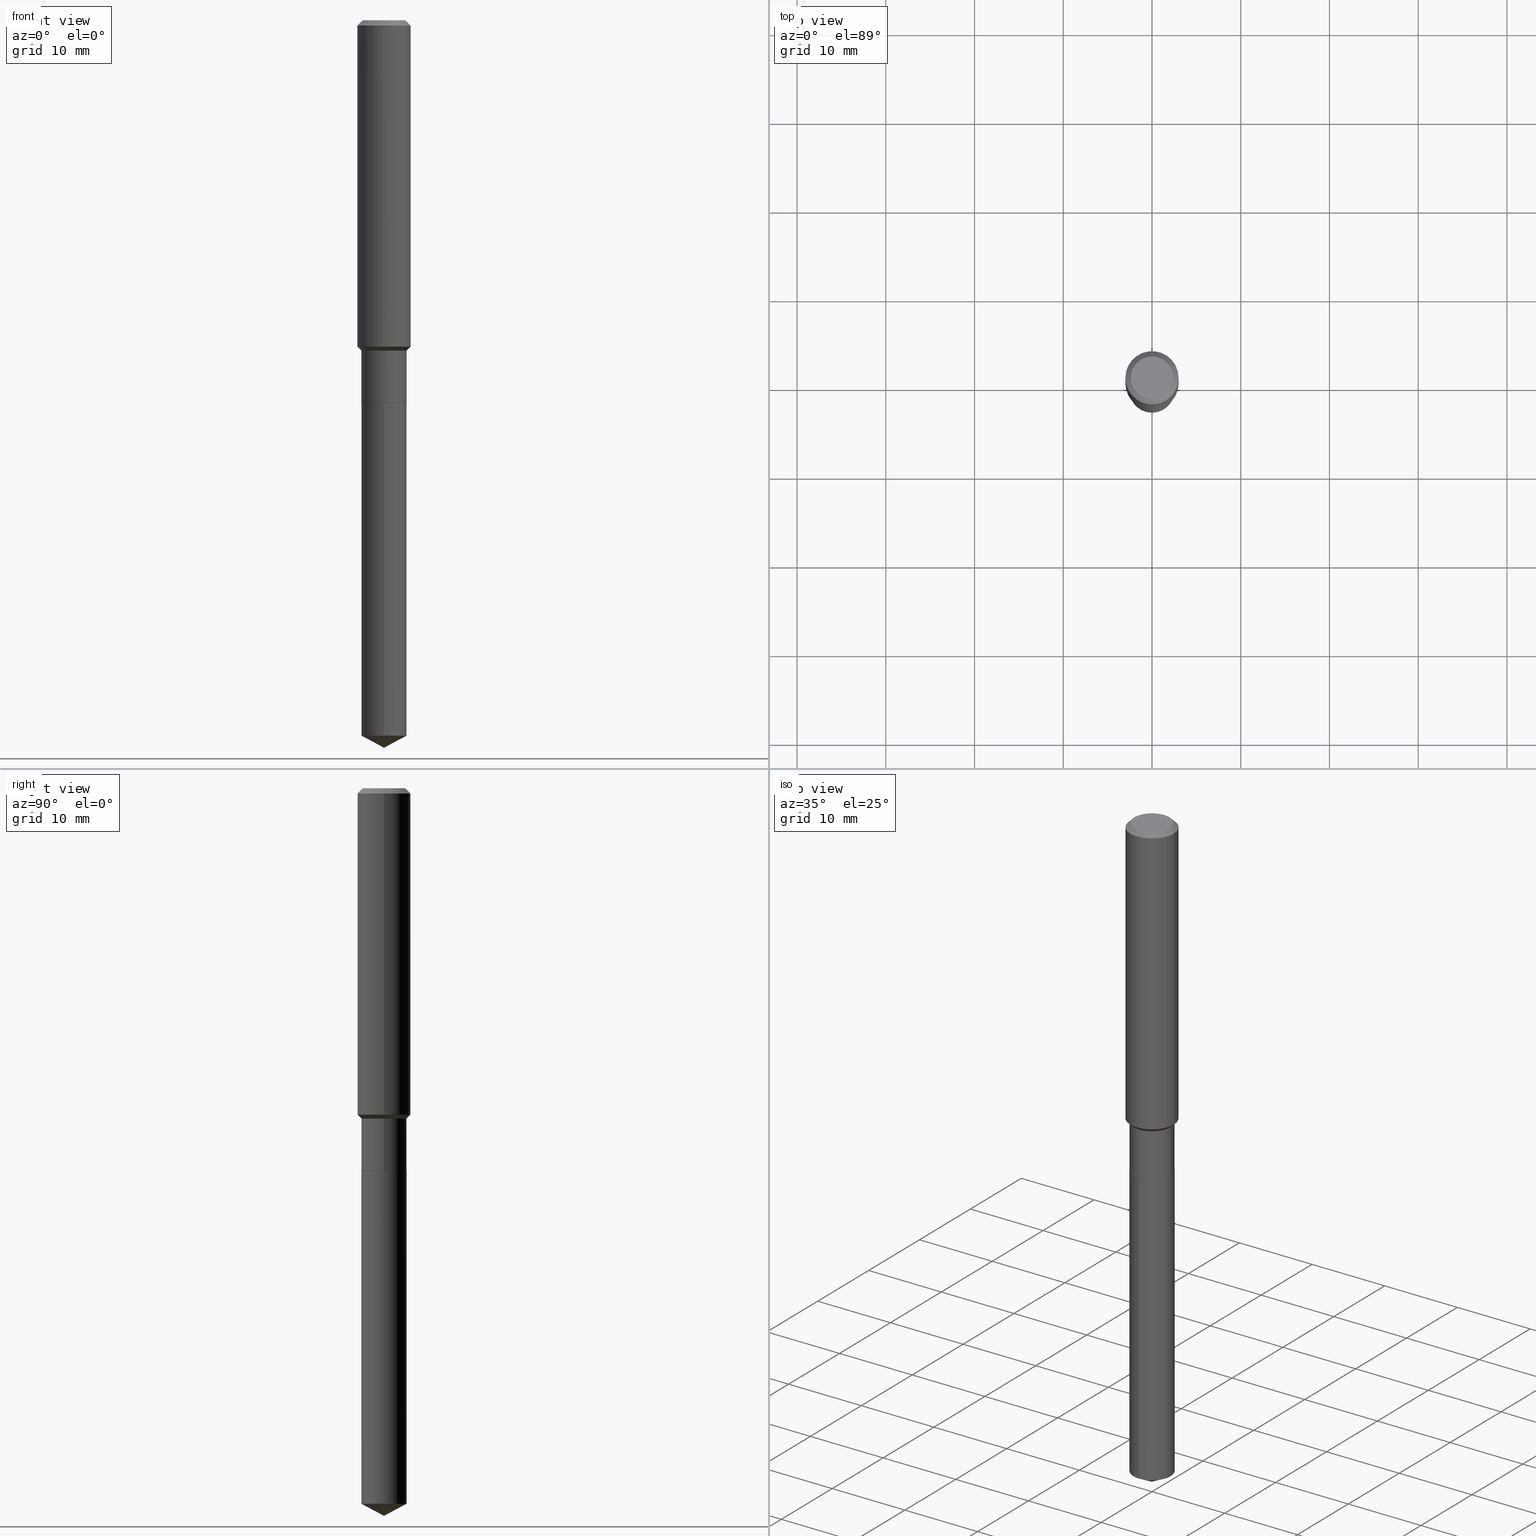
[diagram: canonical four-view strip — front | top / right | iso, engineering-drawing reading convention]
A machine part, canonical four-view strip (front | top / right | iso — engineering-drawing reading convention). The complete STEP part file that produces these views, byte-faithful:
ISO-10303-21;
HEADER;
FILE_DESCRIPTION (( 'STEP AP203' ),
    '1' );
FILE_NAME ('65181.STEP',
    '2024-04-24T21:02:26',
    ( '' ),
    ( '' ),
    'SwSTEP 2.0',
    'SolidWorks 2023',
    '' );
FILE_SCHEMA (( 'CONFIG_CONTROL_DESIGN' ));
ENDSEC;

DATA;
#1 = ORIENTED_EDGE ( 'NONE', *, *, #59, .T. ) ;
#2 = ORIENTED_EDGE ( 'NONE', *, *, #353, .F. ) ;
#3 = EDGE_CURVE ( 'NONE', #124, #419, #349, .T. ) ;
#4 = ORIENTED_EDGE ( 'NONE', *, *, #475, .T. ) ;
#5 = DIRECTION ( 'NONE',  ( 0.7071067811865474617, -2.468850131082256666E-15, 0.7071067811865474617 ) ) ;
#6 = EDGE_LOOP ( 'NONE', ( #276, #163, #28, #160 ) ) ;
#7 = VECTOR ( 'NONE', #195, 39.37007874015748143 ) ;
#8 = AXIS2_PLACEMENT_3D ( 'NONE', #262, #409, #144 ) ;
#9 = LOCAL_TIME ( 17, 2, 26.00000000000000000, #319 ) ;
#10 = DIRECTION ( 'NONE',  ( 1.000000000000000000, -6.982962677686264344E-15, 0.000000000000000000 ) ) ;
#11 = EDGE_LOOP ( 'NONE', ( #227, #336 ) ) ;
#12 = COORDINATED_UNIVERSAL_TIME_OFFSET ( 5, 0, .BEHIND. ) ;
#13 = EDGE_LOOP ( 'NONE', ( #342, #65, #238, #200 ) ) ;
#14 = COORDINATED_UNIVERSAL_TIME_OFFSET ( 5, 0, .BEHIND. ) ;
#15 = CARTESIAN_POINT ( 'NONE',  ( -0.1004000000000000031, -4.806996238141757773E-15, -1.696300000000000363 ) ) ;
#16 = PERSON_AND_ORGANIZATION ( #134, #314 ) ;
#17 = CC_DESIGN_DATE_AND_TIME_ASSIGNMENT ( #20, #471, ( #118 ) ) ;
#18 = DIRECTION ( 'NONE',  ( 1.000000000000000000, -6.982962677686266711E-15, 4.876176775795935232E-29 ) ) ;
#19 = DIRECTION ( 'NONE',  ( -2.445468806185136597E-29, 3.491481338843145583E-15, 1.000000000000000000 ) ) ;
#20 = DATE_AND_TIME ( #244, #114 ) ;
#21 = DIRECTION ( 'NONE',  ( -1.000000000000000000, 6.982962677686266711E-15, 0.000000000000000000 ) ) ;
#22 = PRODUCT_RELATED_PRODUCT_CATEGORY ( 'detail', '', ( #209 ) ) ;
#23 = CARTESIAN_POINT ( 'NONE',  ( 0.09990000000000000269, -6.621943507249908450E-15, -1.696800000000000308 ) ) ;
#24 = APPROVAL ( #355, 'UNSPECIFIED' ) ;
#25 = DIRECTION ( 'NONE',  ( -2.445468806185136597E-29, 3.491481338843145583E-15, 1.000000000000000000 ) ) ;
#26 = VERTEX_POINT ( 'NONE', #88 ) ;
#27 = DIRECTION ( 'NONE',  ( -2.445468806185136877E-29, 3.491481338843145188E-15, 1.000000000000000000 ) ) ;
#28 = ORIENTED_EDGE ( 'NONE', *, *, #152, .T. ) ;
#29 = VECTOR ( 'NONE', #401, 39.37007874015748143 ) ;
#30 = LINE ( 'NONE', #191, #445 ) ;
#31 = AXIS2_PLACEMENT_3D ( 'NONE', #105, #298, #260 ) ;
#32 = LOCAL_TIME ( 17, 2, 26.00000000000000000, #177 ) ;
#33 = DIRECTION ( 'NONE',  ( -2.445468806185136877E-29, 3.491481338843145188E-15, 1.000000000000000000 ) ) ;
#34 = EDGE_CURVE ( 'NONE', #43, #299, #223, .T. ) ;
#35 = CARTESIAN_POINT ( 'NONE',  ( 7.894713085063821487E-29, -1.127154175714341536E-14, -3.228299999999999947 ) ) ;
#36 = VERTEX_POINT ( 'NONE', #80 ) ;
#37 = CLOSED_SHELL ( 'NONE', ( #296, #241, #215, #89, #344, #116, #447, #377, #323, #462, #400, #367 ) ) ;
#38 = AXIS2_PLACEMENT_3D ( 'NONE', #97, #295, #216 ) ;
#39 = CARTESIAN_POINT ( 'NONE',  ( -0.1180999999999999966, 7.422191030112725094E-16, -0.02362000000000014088 ) ) ;
#40 = EDGE_CURVE ( 'NONE', #419, #36, #380, .T. ) ;
#41 = CARTESIAN_POINT ( 'NONE',  ( -0.1003999999999999754, -4.404777587907026784E-15, -1.465899999999999981 ) ) ;
#42 = CARTESIAN_POINT ( 'NONE',  ( -7.010894528396234726E-16, -0.1004000000000110776, -3.174916373061186459 ) ) ;
#43 = VERTEX_POINT ( 'NONE', #85 ) ;
#44 = DIRECTION ( 'NONE',  ( 1.000000000000000000, -6.982962677686267499E-15, 4.875432709231658792E-29 ) ) ;
#45 = VECTOR ( 'NONE', #247, 39.37007874015748854 ) ;
#46 = AXIS2_PLACEMENT_3D ( 'NONE', #313, #159, #237 ) ;
#47 = SECURITY_CLASSIFICATION ( '', '', #322 ) ;
#48 = DIRECTION ( 'NONE',  ( -0.7071067811866199593, 7.493145998870616062E-15, 0.7071067811864750752 ) ) ;
#49 = ORIENTED_EDGE ( 'NONE', *, *, #393, .F. ) ;
#50 = DIMENSIONAL_EXPONENTS ( 1.000000000000000000, 0.000000000000000000, 0.000000000000000000, 0.000000000000000000, 0.000000000000000000, 0.000000000000000000, 0.000000000000000000 ) ;
#51 = PERSON_AND_ORGANIZATION_ROLE ( 'design_owner' ) ;
#52 = CARTESIAN_POINT ( 'NONE',  ( 7.894605359270009974E-29, -1.127169468560939573E-14, -3.228299999999999947 ) ) ;
#53 = APPROVAL ( #210, 'UNSPECIFIED' ) ;
#54 = DATE_AND_TIME ( #207, #32 ) ;
#55 = DIRECTION ( 'NONE',  ( -6.982962677686266711E-15, -1.000000000000000000, 2.720964137115799877E-15 ) ) ;
#56 = AXIS2_PLACEMENT_3D ( 'NONE', #466, #212, #172 ) ;
#57 = AXIS2_PLACEMENT_3D ( 'NONE', #483, #181, #108 ) ;
#58 = CIRCLE ( 'NONE', #275, 0.1180999999999999966 ) ;
#59 = EDGE_CURVE ( 'NONE', #43, #127, #167, .T. ) ;
#60 = CARTESIAN_POINT ( 'NONE',  ( 7.894605359270009974E-29, -1.127169468560939573E-14, -3.228299999999999947 ) ) ;
#61 = CARTESIAN_POINT ( 'NONE',  ( -7.010894528396596616E-16, -0.1004000000000059289, -1.696800000000000086 ) ) ;
#62 = CARTESIAN_POINT ( 'NONE',  ( 5.776197320209327532E-31, -8.246878922347559293E-17, -0.02362000000000014088 ) ) ;
#63 = AXIS2_PLACEMENT_3D ( 'NONE', #62, #363, #21 ) ;
#64 = FACE_OUTER_BOUND ( 'NONE', #13, .T. ) ;
#65 = ORIENTED_EDGE ( 'NONE', *, *, #372, .T. ) ;
#66 = LINE ( 'NONE', #369, #396 ) ;
#67 = ORIENTED_EDGE ( 'NONE', *, *, #82, .T. ) ;
#68 = CC_DESIGN_PERSON_AND_ORGANIZATION_ASSIGNMENT ( #465, #132, ( #141 ) ) ;
#69 = CARTESIAN_POINT ( 'NONE',  ( 4.149471470334940863E-29, -5.924345535749050380E-15, -1.696800000000000308 ) ) ;
#70 = EDGE_LOOP ( 'NONE', ( #421, #423, #4, #406 ) ) ;
#71 = AXIS2_PLACEMENT_3D ( 'NONE', #234, #197, #55 ) ;
#72 = CIRCLE ( 'NONE', #217, 0.1003999999999999754 ) ;
#73 = DIRECTION ( 'NONE',  ( -2.445437338311188488E-29, 3.491526402629679676E-15, 1.000000000000000000 ) ) ;
#74 = VECTOR ( 'NONE', #33, 39.37007874015748143 ) ;
#75 = LOCAL_TIME ( 17, 2, 26.00000000000000000, #14 ) ;
#76 = EDGE_CURVE ( 'NONE', #121, #106, #477, .T. ) ;
#77 = LINE ( 'NONE', #220, #320 ) ;
#78 = ORIENTED_EDGE ( 'NONE', *, *, #453, .F. ) ;
#79 = DIRECTION ( 'NONE',  ( 2.438088387897960049E-29, -3.491481338843145188E-15, -1.000000000000000000 ) ) ;
#80 = CARTESIAN_POINT ( 'NONE',  ( -0.1181000000000001632, -4.217212303979963532E-15, -1.448199999999999932 ) ) ;
#81 = DESIGN_CONTEXT ( 'detailed design', #104, 'design' ) ;
#82 = EDGE_CURVE ( 'NONE', #259, #385, #180, .T. ) ;
#83 = CC_DESIGN_DATE_AND_TIME_ASSIGNMENT ( #428, #359, ( #47 ) ) ;
#84 = AXIS2_PLACEMENT_3D ( 'NONE', #426, #245, #392 ) ;
#85 = CARTESIAN_POINT ( 'NONE',  ( -0.09447999999999998066, 7.009847083995354710E-16, -1.928573779297727792E-17 ) ) ;
#86 = LINE ( 'NONE', #274, #112 ) ;
#87 = ORIENTED_EDGE ( 'NONE', *, *, #289, .T. ) ;
#88 = CARTESIAN_POINT ( 'NONE',  ( -0.09990000000000000269, -5.211864115550599962E-15, -1.696800000000000308 ) ) ;
#89 = ADVANCED_FACE ( 'NONE', ( #95 ), #350, .T. ) ;
#90 = PLANE ( 'NONE',  #218 ) ;
#91 = ORIENTED_EDGE ( 'NONE', *, *, #372, .F. ) ;
#92 = UNCERTAINTY_MEASURE_WITH_UNIT (LENGTH_MEASURE( 1.000000000000000082E-05 ), #194, 'distance_accuracy_value', 'NONE');
#93 = AXIS2_PLACEMENT_3D ( 'NONE', #479, #366, #266 ) ;
#94 = EDGE_CURVE ( 'NONE', #124, #278, #272, .T. ) ;
#95 = FACE_OUTER_BOUND ( 'NONE', #190, .T. ) ;
#96 = DATE_AND_TIME ( #281, #9 ) ;
#97 = CARTESIAN_POINT ( 'NONE',  ( 4.149471470334940863E-29, -5.924345535749050380E-15, -1.696800000000000308 ) ) ;
#98 = PERSON_AND_ORGANIZATION ( #134, #314 ) ;
#99 = DIRECTION ( 'NONE',  ( -2.445437338311188488E-29, 3.491526402629679676E-15, 1.000000000000000000 ) ) ;
#100 = CONICAL_SURFACE ( 'NONE', #149, 0.09990000000000000269, 0.7853981633975507526 ) ;
#101 = CARTESIAN_POINT ( 'NONE',  ( 0.1003999999999999754, -5.819251947449867977E-15, -1.465899999999999981 ) ) ;
#102 = LINE ( 'NONE', #61, #257 ) ;
#103 = FACE_OUTER_BOUND ( 'NONE', #302, .T. ) ;
#104 = APPLICATION_CONTEXT ( 'configuration controlled 3d designs of mechanical parts and assemblies' ) ;
#105 = CARTESIAN_POINT ( 'NONE',  ( 4.149471470334940863E-29, -5.924345535749050380E-15, -1.696800000000000308 ) ) ;
#106 = VERTEX_POINT ( 'NONE', #254 ) ;
#107 = CC_DESIGN_PERSON_AND_ORGANIZATION_ASSIGNMENT ( #16, #317, ( #118 ) ) ;
#108 = DIRECTION ( 'NONE',  ( 1.000000000000000000, -6.982962677686267499E-15, 0.000000000000000000 ) ) ;
#109 = ORIENTED_EDGE ( 'NONE', *, *, #371, .F. ) ;
#110 = DIRECTION ( 'NONE',  ( -6.982962677686266711E-15, -1.000000000000000000, 2.720964137115799877E-15 ) ) ;
#111 = ORIENTED_EDGE ( 'NONE', *, *, #3, .F. ) ;
#112 = VECTOR ( 'NONE', #5, 39.37007874015748854 ) ;
#113 = DIRECTION ( 'NONE',  ( 1.000000000000000000, -6.982962677686267499E-15, 0.000000000000000000 ) ) ;
#114 = LOCAL_TIME ( 17, 2, 26.00000000000000000, #12 ) ;
#115 = ORIENTED_EDGE ( 'NONE', *, *, #152, .F. ) ;
#116 = ADVANCED_FACE ( 'NONE', ( #285 ), #133, .T. ) ;
#117 = DIRECTION ( 'NONE',  ( -2.445468806185136597E-29, 3.491481338843145583E-15, 1.000000000000000000 ) ) ;
#118 = PRODUCT_DEFINITION ( 'UNKNOWN', '', #141, #81 ) ;
#119 = ORIENTED_EDGE ( 'NONE', *, *, #82, .F. ) ;
#120 = CARTESIAN_POINT ( 'NONE',  ( 3.541527925117314653E-29, -5.056363274912643307E-15, -1.448199999999999932 ) ) ;
#121 = VERTEX_POINT ( 'NONE', #356 ) ;
#122 = DIRECTION ( 'NONE',  ( -2.445468806185136597E-29, 3.491481338843145583E-15, 1.000000000000000000 ) ) ;
#123 = CIRCLE ( 'NONE', #8, 0.1181000000000001632 ) ;
#124 = VERTEX_POINT ( 'NONE', #15 ) ;
#125 = ORIENTED_EDGE ( 'NONE', *, *, #206, .T. ) ;
#126 = PLANE ( 'NONE',  #264 ) ;
#127 = VERTEX_POINT ( 'NONE', #330 ) ;
#128 = ADVANCED_FACE ( 'NONE', ( #435 ), #410, .T. ) ;
#129 = APPROVAL_DATE_TIME ( #54, #53 ) ;
#130 = FACE_OUTER_BOUND ( 'NONE', #6, .T. ) ;
#131 = AXIS2_PLACEMENT_3D ( 'NONE', #328, #473, #143 ) ;
#132 = PERSON_AND_ORGANIZATION_ROLE ( 'design_supplier' ) ;
#133 = CYLINDRICAL_SURFACE ( 'NONE', #185, 0.1003999999999999893 ) ;
#134 = PERSON ( 'UNSPECIFIED', 'UNSPECIFIED', 'UNSPECIFIED', ('UNSPECIFIED'), ('UNSPECIFIED'), ('UNSPECIFIED') ) ;
#135 = APPROVAL_ROLE ( '' ) ;
#136 = DIRECTION ( 'NONE',  ( -2.445468806185136597E-29, 3.491481338843145583E-15, 1.000000000000000000 ) ) ;
#137 = EDGE_CURVE ( 'NONE', #299, #311, #361, .T. ) ;
#138 = PERSON_AND_ORGANIZATION ( #134, #314 ) ;
#139 = CARTESIAN_POINT ( 'NONE',  ( 0.000000000000000000, 0.000000000000000000, 0.000000000000000000 ) ) ;
#140 = AXIS2_PLACEMENT_3D ( 'NONE', #308, #451, #422 ) ;
#141 = PRODUCT_DEFINITION_FORMATION_WITH_SPECIFIED_SOURCE ( 'ANY', '', #209, .NOT_KNOWN. ) ;
#142 = PERSON_AND_ORGANIZATION ( #134, #314 ) ;
#143 = DIRECTION ( 'NONE',  ( 1.000000000000000000, -6.982962677686266711E-15, 0.000000000000000000 ) ) ;
#144 = DIRECTION ( 'NONE',  ( 1.000000000000000000, -6.982962677686263555E-15, 0.000000000000000000 ) ) ;
#145 = DIRECTION ( 'NONE',  ( -2.445437338311188488E-29, 3.491526402629679676E-15, 1.000000000000000000 ) ) ;
#146 = EDGE_CURVE ( 'NONE', #482, #106, #175, .T. ) ;
#147 = ORIENTED_EDGE ( 'NONE', *, *, #309, .T. ) ;
#148 = VECTOR ( 'NONE', #204, 39.37007874015748854 ) ;
#149 = AXIS2_PLACEMENT_3D ( 'NONE', #334, #331, #113 ) ;
#150 = FACE_OUTER_BOUND ( 'NONE', #154, .T. ) ;
#151 = ORIENTED_EDGE ( 'NONE', *, *, #453, .T. ) ;
#152 = EDGE_CURVE ( 'NONE', #385, #121, #102, .T. ) ;
#153 = CARTESIAN_POINT ( 'NONE',  ( 3.584812722986791865E-29, -5.118162494610166900E-15, -1.465899999999999981 ) ) ;
#154 = EDGE_LOOP ( 'NONE', ( #125, #347, #109, #417 ) ) ;
#155 = CARTESIAN_POINT ( 'NONE',  ( 3.584812722986791865E-29, -5.118162494610166900E-15, -1.465899999999999981 ) ) ;
#156 = VECTOR ( 'NONE', #301, 39.37007874015748143 ) ;
#157 = PLANE ( 'NONE',  #46 ) ;
#158 = ORIENTED_EDGE ( 'NONE', *, *, #76, .F. ) ;
#159 = DIRECTION ( 'NONE',  ( 2.445437338311187928E-29, -3.491526402629679676E-15, -1.000000000000000000 ) ) ;
#160 = ORIENTED_EDGE ( 'NONE', *, *, #309, .F. ) ;
#161 = DIRECTION ( 'NONE',  ( -1.000000000000000000, 6.982962677686265922E-15, -4.876176775795935793E-29 ) ) ;
#162 = MANIFOLD_SOLID_BREP ( 'Body-Move/Copy2[1]', #454 ) ;
#163 = ORIENTED_EDGE ( 'NONE', *, *, #439, .T. ) ;
#164 = CARTESIAN_POINT ( 'NONE',  ( 4.149471470334940863E-29, -5.924345535749050380E-15, -1.696800000000000308 ) ) ;
#165 = CIRCLE ( 'NONE', #433, 0.09990000000000000269 ) ;
#166 = EDGE_LOOP ( 'NONE', ( #487, #443, #158, #115 ) ) ;
#167 = LINE ( 'NONE', #39, #7 ) ;
#168 = DATE_AND_TIME ( #174, #294 ) ;
#169 = ORIENTED_EDGE ( 'NONE', *, *, #94, .T. ) ;
#170 = CALENDAR_DATE ( 2024, 24, 4 ) ;
#171 = CC_DESIGN_PERSON_AND_ORGANIZATION_ASSIGNMENT ( #142, #284, ( #47 ) ) ;
#172 = DIRECTION ( 'NONE',  ( 1.000000000000000000, -6.982962677686264344E-15, 0.000000000000000000 ) ) ;
#173 = CONICAL_SURFACE ( 'NONE', #481, 0.1003999999999999754, 0.7853981633974482790 ) ;
#174 = CALENDAR_DATE ( 2024, 24, 4 ) ;
#175 = LINE ( 'NONE', #178, #252 ) ;
#176 = CARTESIAN_POINT ( 'NONE',  ( 0.1180999999999999966, -8.926936027602933910E-16, -0.02362000000000014088 ) ) ;
#177 = COORDINATED_UNIVERSAL_TIME_OFFSET ( 5, 0, .BEHIND. ) ;
#178 = CARTESIAN_POINT ( 'NONE',  ( 7.133849067031820241E-16, 0.1003999999999940773, -1.696800000000000530 ) ) ;
#179 = CIRCLE ( 'NONE', #282, 0.1004000000000000031 ) ;
#180 = LINE ( 'NONE', #60, #45 ) ;
#181 = DIRECTION ( 'NONE',  ( -2.445468806185136597E-29, 3.491481338843145583E-15, 1.000000000000000000 ) ) ;
#182 = ORIENTED_EDGE ( 'NONE', *, *, #371, .T. ) ;
#183 = CYLINDRICAL_SURFACE ( 'NONE', #31, 0.1004000000000000031 ) ;
#184 = ORIENTED_EDGE ( 'NONE', *, *, #362, .F. ) ;
#185 = AXIS2_PLACEMENT_3D ( 'NONE', #395, #136, #18 ) ;
#186 = VECTOR ( 'NONE', #48, 39.37007874015748143 ) ;
#187 = DIRECTION ( 'NONE',  ( -2.445468806185136597E-29, 3.491481338843145583E-15, 1.000000000000000000 ) ) ;
#188 = ORIENTED_EDGE ( 'NONE', *, *, #439, .F. ) ;
#189 = CARTESIAN_POINT ( 'NONE',  ( 4.149471470334940863E-29, -5.924345535749050380E-15, -1.696800000000000308 ) ) ;
#190 = EDGE_LOOP ( 'NONE', ( #182, #192, #78, #49 ) ) ;
#191 = CARTESIAN_POINT ( 'NONE',  ( 0.1003999999999999893, -7.010894528397010768E-16, 4.895681482899118454E-30 ) ) ;
#192 = ORIENTED_EDGE ( 'NONE', *, *, #40, .T. ) ;
#193 = CONICAL_SURFACE ( 'NONE', #63, 0.1180999999999999966, 0.7853981633974460586 ) ;
#194 =( CONVERSION_BASED_UNIT ( 'INCH', #382 ) LENGTH_UNIT ( ) NAMED_UNIT ( #50 ) );
#195 = DIRECTION ( 'NONE',  ( -0.7071067811865459074, 2.468850131082240100E-15, -0.7071067811865491270 ) ) ;
#196 = DIRECTION ( 'NONE',  ( -2.438088387897960049E-29, 3.491481338843145188E-15, 1.000000000000000000 ) ) ;
#197 = DIRECTION ( 'NONE',  ( -2.445437338311188488E-29, 3.491526402629679676E-15, 1.000000000000000000 ) ) ;
#198 = ADVANCED_BREP_SHAPE_REPRESENTATION ( '65181', ( #162, #478, #472 ), #203 ) ;
#199 = DIRECTION ( 'NONE',  ( -2.445468806185136597E-29, 3.491481338843145583E-15, 1.000000000000000000 ) ) ;
#200 = ORIENTED_EDGE ( 'NONE', *, *, #246, .F. ) ;
#201 = AXIS2_PLACEMENT_3D ( 'NONE', #211, #429, #398 ) ;
#202 = CARTESIAN_POINT ( 'NONE',  ( 3.584812722986791865E-29, -5.118162494610166900E-15, -1.465899999999999981 ) ) ;
#203 =( GEOMETRIC_REPRESENTATION_CONTEXT ( 3 ) GLOBAL_UNCERTAINTY_ASSIGNED_CONTEXT ( ( #92 ) ) GLOBAL_UNIT_ASSIGNED_CONTEXT ( ( #194, #310, #416 ) ) REPRESENTATION_CONTEXT ( 'NONE', 'WORKASPACE' ) );
#204 = DIRECTION ( 'NONE',  ( -0.7071067811865474617, 7.493145998870352582E-15, 0.7071067811865474617 ) ) ;
#205 = ORIENTED_EDGE ( 'NONE', *, *, #94, .F. ) ;
#206 = EDGE_CURVE ( 'NONE', #278, #124, #179, .T. ) ;
#207 = CALENDAR_DATE ( 2024, 24, 4 ) ;
#208 = CARTESIAN_POINT ( 'NONE',  ( 0.1181000000000001632, -5.881051167147392359E-15, -1.448199999999999932 ) ) ;
#209 = PRODUCT ( '65181', '65181', '', ( #489 ) ) ;
#210 = APPROVAL_STATUS ( 'not_yet_approved' ) ;
#211 = CARTESIAN_POINT ( 'NONE',  ( -8.838240180947410923E-28, 1.261900511734928916E-13, 36.14177874015747705 ) ) ;
#212 = DIRECTION ( 'NONE',  ( -2.445468806185136597E-29, 3.491481338843145583E-15, 1.000000000000000000 ) ) ;
#213 = ADVANCED_FACE ( 'NONE', ( #326 ), #381, .T. ) ;
#214 = FACE_OUTER_BOUND ( 'NONE', #70, .T. ) ;
#215 = ADVANCED_FACE ( 'NONE', ( #251 ), #364, .T. ) ;
#216 = DIRECTION ( 'NONE',  ( 1.000000000000000000, -6.982962677686267499E-15, 0.000000000000000000 ) ) ;
#217 = AXIS2_PLACEMENT_3D ( 'NONE', #155, #122, #420 ) ;
#218 = AXIS2_PLACEMENT_3D ( 'NONE', #228, #79, #161 ) ;
#219 = CARTESIAN_POINT ( 'NONE',  ( 0.1004000000000000031, -6.623689247919329954E-15, -1.696300000000000363 ) ) ;
#220 = CARTESIAN_POINT ( 'NONE',  ( 0.09990000000000000269, -6.621943507249908450E-15, -1.696800000000000308 ) ) ;
#221 = VERTEX_POINT ( 'NONE', #101 ) ;
#222 = FACE_OUTER_BOUND ( 'NONE', #376, .T. ) ;
#223 = CIRCLE ( 'NONE', #358, 0.09447999999999998066 ) ;
#224 = DIRECTION ( 'NONE',  ( 2.445468806185136597E-29, -3.491481338843145583E-15, -1.000000000000000000 ) ) ;
#225 = ORIENTED_EDGE ( 'NONE', *, *, #76, .T. ) ;
#226 = DIRECTION ( 'NONE',  ( -6.982962677686266711E-15, -1.000000000000000000, 5.441928274231599754E-15 ) ) ;
#227 = ORIENTED_EDGE ( 'NONE', *, *, #34, .T. ) ;
#228 = CARTESIAN_POINT ( 'NONE',  ( 2.358133508849003952E-46, -3.366789680499277518E-32, -9.642868896486260050E-18 ) ) ;
#229 = EDGE_LOOP ( 'NONE', ( #111, #169, #404, #354 ) ) ;
#230 = VECTOR ( 'NONE', #268, 39.37007874015748143 ) ;
#231 = AXIS2_PLACEMENT_3D ( 'NONE', #444, #224, #373 ) ;
#232 = CARTESIAN_POINT ( 'NONE',  ( -0.1003999999999999754, -4.806996238141757773E-15, -1.465899999999999981 ) ) ;
#233 = APPROVAL_PERSON_ORGANIZATION ( #98, #24, #135 ) ;
#234 = CARTESIAN_POINT ( 'NONE',  ( 4.149471470334940863E-29, -5.924345535749050380E-15, -1.696800000000000308 ) ) ;
#235 = FACE_OUTER_BOUND ( 'NONE', #463, .T. ) ;
#236 = EDGE_LOOP ( 'NONE', ( #184, #460 ) ) ;
#237 = DIRECTION ( 'NONE',  ( 6.982962677686265922E-15, 1.000000000000000000, -3.491526402629679676E-15 ) ) ;
#238 = ORIENTED_EDGE ( 'NONE', *, *, #378, .T. ) ;
#239 = DIRECTION ( 'NONE',  ( 0.000000000000000000, 0.000000000000000000, 1.000000000000000000 ) ) ;
#240 = CIRCLE ( 'NONE', #131, 0.1180999999999999966 ) ;
#241 = ADVANCED_FACE ( 'NONE', ( #214 ), #193, .T. ) ;
#242 = APPROVAL_PERSON_ORGANIZATION ( #425, #53, #250 ) ;
#243 = VERTEX_POINT ( 'NONE', #23 ) ;
#244 = CALENDAR_DATE ( 2024, 24, 4 ) ;
#245 = DIRECTION ( 'NONE',  ( -2.445437338311188488E-29, 3.491526402629679676E-15, 1.000000000000000000 ) ) ;
#246 = EDGE_CURVE ( 'NONE', #127, #311, #240, .T. ) ;
#247 = DIRECTION ( 'NONE',  ( -6.165590087286817097E-15, -0.8829475928589237688, 0.4694715627858968565 ) ) ;
#248 = PRODUCT_DEFINITION_SHAPE ( 'NONE', 'NONE',  #118 ) ;
#249 = EDGE_CURVE ( 'NONE', #26, #243, #343, .T. ) ;
#250 = APPROVAL_ROLE ( '' ) ;
#251 = FACE_OUTER_BOUND ( 'NONE', #312, .T. ) ;
#252 = VECTOR ( 'NONE', #321, 39.37007874015748143 ) ;
#253 = CARTESIAN_POINT ( 'NONE',  ( 4.148248735931848062E-29, -5.922599795079628877E-15, -1.696300000000000363 ) ) ;
#254 = CARTESIAN_POINT ( 'NONE',  ( 7.133849067032184103E-16, 0.1003999999999940773, -1.696800000000000530 ) ) ;
#255 = CARTESIAN_POINT ( 'NONE',  ( 0.1180999999999999966, -9.071566814582237199E-16, -0.02362000000000014088 ) ) ;
#256 = ADVANCED_FACE ( 'NONE', ( #130 ), #283, .T. ) ;
#257 = VECTOR ( 'NONE', #324, 39.37007874015748143 ) ;
#258 = CARTESIAN_POINT ( 'NONE',  ( 7.764112439387876695E-29, -1.108522787845140694E-14, -3.174916373061187347 ) ) ;
#259 = VERTEX_POINT ( 'NONE', #52 ) ;
#260 = DIRECTION ( 'NONE',  ( -6.982962677686266711E-15, -1.000000000000000000, 2.720964137115799877E-15 ) ) ;
#261 = VERTEX_POINT ( 'NONE', #208 ) ;
#262 = CARTESIAN_POINT ( 'NONE',  ( 3.541527925117314653E-29, -5.056363274912643307E-15, -1.448199999999999932 ) ) ;
#263 = ORIENTED_EDGE ( 'NONE', *, *, #393, .T. ) ;
#264 = AXIS2_PLACEMENT_3D ( 'NONE', #164, #196, #448 ) ;
#265 = CC_DESIGN_APPROVAL ( #53, ( #118 ) ) ;
#266 = DIRECTION ( 'NONE',  ( 1.000000000000000000, -6.982962677686267499E-15, 4.875432709231658792E-29 ) ) ;
#267 = FACE_OUTER_BOUND ( 'NONE', #236, .T. ) ;
#268 = DIRECTION ( 'NONE',  ( -2.445468806185136877E-29, 3.491481338843145188E-15, 1.000000000000000000 ) ) ;
#269 = DIRECTION ( 'NONE',  ( 1.000000000000000000, -6.982962677686266711E-15, 0.000000000000000000 ) ) ;
#270 = ORIENTED_EDGE ( 'NONE', *, *, #246, .T. ) ;
#271 = ADVANCED_FACE ( 'NONE', ( #307 ), #183, .T. ) ;
#272 = CIRCLE ( 'NONE', #335, 0.1004000000000000031 ) ;
#273 = AXIS2_PLACEMENT_3D ( 'NONE', #153, #474, #304 ) ;
#274 = CARTESIAN_POINT ( 'NONE',  ( 0.1003999999999999754, -5.819251947449867977E-15, -1.465899999999999981 ) ) ;
#275 = AXIS2_PLACEMENT_3D ( 'NONE', #277, #199, #269 ) ;
#276 = ORIENTED_EDGE ( 'NONE', *, *, #146, .F. ) ;
#277 = CARTESIAN_POINT ( 'NONE',  ( 5.776197320209327532E-31, -8.246878922347559293E-17, -0.02362000000000014088 ) ) ;
#278 = VERTEX_POINT ( 'NONE', #219 ) ;
#279 =( LENGTH_UNIT ( ) NAMED_UNIT ( * ) SI_UNIT ( $, .METRE. ) );
#280 = ORIENTED_EDGE ( 'NONE', *, *, #378, .F. ) ;
#281 = CALENDAR_DATE ( 2024, 24, 4 ) ;
#282 = AXIS2_PLACEMENT_3D ( 'NONE', #360, #287, #468 ) ;
#283 = CYLINDRICAL_SURFACE ( 'NONE', #84, 0.1004000000000000031 ) ;
#284 = PERSON_AND_ORGANIZATION_ROLE ( 'classification_officer' ) ;
#285 = FACE_OUTER_BOUND ( 'NONE', #229, .T. ) ;
#286 = APPROVAL_DATE_TIME ( #168, #24 ) ;
#287 = DIRECTION ( 'NONE',  ( -2.445468806185136597E-29, 3.491481338843145583E-15, 1.000000000000000000 ) ) ;
#288 = EDGE_CURVE ( 'NONE', #278, #221, #30, .T. ) ;
#289 = EDGE_CURVE ( 'NONE', #36, #127, #442, .T. ) ;
#290 = APPROVAL_ROLE ( '' ) ;
#291 = DIRECTION ( 'NONE',  ( -2.445468806185136597E-29, 3.491481338843145583E-15, 1.000000000000000000 ) ) ;
#292 = CIRCLE ( 'NONE', #273, 0.1003999999999999754 ) ;
#293 = AXIS2_PLACEMENT_3D ( 'NONE', #139, #291, #434 ) ;
#294 = LOCAL_TIME ( 17, 2, 26.00000000000000000, #391 ) ;
#295 = DIRECTION ( 'NONE',  ( -2.445468806185136597E-29, 3.491481338843145583E-15, 1.000000000000000000 ) ) ;
#296 = ADVANCED_FACE ( 'NONE', ( #297 ), #100, .T. ) ;
#297 = FACE_OUTER_BOUND ( 'NONE', #383, .T. ) ;
#298 = DIRECTION ( 'NONE',  ( -2.445437338311188488E-29, 3.491526402629679676E-15, 1.000000000000000000 ) ) ;
#299 = VERTEX_POINT ( 'NONE', #407 ) ;
#300 = AXIS2_PLACEMENT_3D ( 'NONE', #375, #25, #402 ) ;
#301 = DIRECTION ( 'NONE',  ( 6.273719981627746355E-15, 0.8829475928589269884, 0.4694715627858906393 ) ) ;
#302 = EDGE_LOOP ( 'NONE', ( #441, #340, #1, #270 ) ) ;
#303 = APPLICATION_CONTEXT ( 'configuration controlled 3d designs of mechanical parts and assemblies' ) ;
#304 = DIRECTION ( 'NONE',  ( 1.000000000000000000, -6.982962677686264344E-15, 0.000000000000000000 ) ) ;
#305 = ORIENTED_EDGE ( 'NONE', *, *, #362, .T. ) ;
#306 = EDGE_CURVE ( 'NONE', #385, #482, #418, .T. ) ;
#307 = FACE_OUTER_BOUND ( 'NONE', #166, .T. ) ;
#308 = CARTESIAN_POINT ( 'NONE',  ( 7.764112439387876695E-29, -1.108522787845140694E-14, -3.174916373061187347 ) ) ;
#309 = EDGE_CURVE ( 'NONE', #106, #121, #464, .T. ) ;
#310 =( NAMED_UNIT ( * ) PLANE_ANGLE_UNIT ( ) SI_UNIT ( $, .RADIAN. ) );
#311 = VERTEX_POINT ( 'NONE', #255 ) ;
#312 = EDGE_LOOP ( 'NONE', ( #151, #87, #316, #280 ) ) ;
#313 = CARTESIAN_POINT ( 'NONE',  ( 4.149471470334940863E-29, -5.924345535749050380E-15, -1.696800000000000308 ) ) ;
#314 = ORGANIZATION ( 'UNSPECIFIED', 'UNSPECIFIED', '' ) ;
#315 = ORIENTED_EDGE ( 'NONE', *, *, #488, .T. ) ;
#316 = ORIENTED_EDGE ( 'NONE', *, *, #475, .F. ) ;
#317 = PERSON_AND_ORGANIZATION_ROLE ( 'creator' ) ;
#318 = ORIENTED_EDGE ( 'NONE', *, *, #206, .F. ) ;
#319 = COORDINATED_UNIVERSAL_TIME_OFFSET ( 5, 0, .BEHIND. ) ;
#320 = VECTOR ( 'NONE', #436, 39.37007874015748143 ) ;
#321 = DIRECTION ( 'NONE',  ( -2.445437338311188488E-29, 3.491526402629679676E-15, 1.000000000000000000 ) ) ;
#322 = SECURITY_CLASSIFICATION_LEVEL ( 'unclassified' ) ;
#323 = ADVANCED_FACE ( 'NONE', ( #103 ), #438, .T. ) ;
#324 = DIRECTION ( 'NONE',  ( -2.445437338311188488E-29, 3.491526402629679676E-15, 1.000000000000000000 ) ) ;
#325 = PERSON_AND_ORGANIZATION_ROLE ( 'creator' ) ;
#326 = FACE_OUTER_BOUND ( 'NONE', #450, .T. ) ;
#327 = APPROVAL_STATUS ( 'not_yet_approved' ) ;
#328 = CARTESIAN_POINT ( 'NONE',  ( 5.776197320209327532E-31, -8.246878922347559293E-17, -0.02362000000000014088 ) ) ;
#329 = CIRCLE ( 'NONE', #403, 0.1181000000000001632 ) ;
#330 = CARTESIAN_POINT ( 'NONE',  ( -0.1180999999999999966, -1.730265061135379805E-15, -0.02362000000000014088 ) ) ;
#331 = DIRECTION ( 'NONE',  ( -2.445468806185136597E-29, 3.491481338843145583E-15, 1.000000000000000000 ) ) ;
#332 = ORIENTED_EDGE ( 'NONE', *, *, #306, .F. ) ;
#333 = EDGE_CURVE ( 'NONE', #299, #43, #455, .T. ) ;
#334 = CARTESIAN_POINT ( 'NONE',  ( 4.149471470334940863E-29, -5.924345535749050380E-15, -1.696800000000000308 ) ) ;
#335 = AXIS2_PLACEMENT_3D ( 'NONE', #253, #19, #399 ) ;
#336 = ORIENTED_EDGE ( 'NONE', *, *, #333, .T. ) ;
#337 = DIRECTION ( 'NONE',  ( 1.000000000000000000, -6.982962677686267499E-15, 0.000000000000000000 ) ) ;
#338 = EDGE_LOOP ( 'NONE', ( #119, #370, #332 ) ) ;
#339 = CYLINDRICAL_SURFACE ( 'NONE', #411, 0.1181000000000000799 ) ;
#340 = ORIENTED_EDGE ( 'NONE', *, *, #34, .F. ) ;
#341 = DIRECTION ( 'NONE',  ( 1.000000000000000000, 0.000000000000000000, 0.000000000000000000 ) ) ;
#342 = ORIENTED_EDGE ( 'NONE', *, *, #289, .F. ) ;
#343 = CIRCLE ( 'NONE', #38, 0.09990000000000000269 ) ;
#344 = ADVANCED_FACE ( 'NONE', ( #150 ), #412, .T. ) ;
#345 = DIRECTION ( 'NONE',  ( -2.445468806185136597E-29, 3.491481338843145583E-15, 1.000000000000000000 ) ) ;
#346 = CARTESIAN_POINT ( 'NONE',  ( 7.133849067032180158E-16, 0.1003999999999889148, -3.174916373061187791 ) ) ;
#347 = ORIENTED_EDGE ( 'NONE', *, *, #3, .T. ) ;
#348 = CARTESIAN_POINT ( 'NONE',  ( -0.09990000000000000269, -5.214513342724711163E-15, -1.696800000000000308 ) ) ;
#349 = LINE ( 'NONE', #458, #230 ) ;
#350 = CONICAL_SURFACE ( 'NONE', #56, 0.1003999999999999754, 0.7853981633974482790 ) ;
#351 = CIRCLE ( 'NONE', #140, 0.1004000000000000031 ) ;
#352 = ORIENTED_EDGE ( 'NONE', *, *, #488, .F. ) ;
#353 = EDGE_CURVE ( 'NONE', #243, #278, #77, .T. ) ;
#354 = ORIENTED_EDGE ( 'NONE', *, *, #384, .F. ) ;
#355 = APPROVAL_STATUS ( 'not_yet_approved' ) ;
#356 = CARTESIAN_POINT ( 'NONE',  ( -7.010894528396596616E-16, -0.1004000000000059289, -1.696800000000000086 ) ) ;
#357 = EDGE_CURVE ( 'NONE', #259, #482, #476, .T. ) ;
#358 = AXIS2_PLACEMENT_3D ( 'NONE', #387, #414, #44 ) ;
#359 = DATE_TIME_ROLE ( 'classification_date' ) ;
#360 = CARTESIAN_POINT ( 'NONE',  ( 4.148248735931848062E-29, -5.922599795079628877E-15, -1.696300000000000363 ) ) ;
#361 = LINE ( 'NONE', #176, #29 ) ;
#362 = EDGE_CURVE ( 'NONE', #243, #26, #165, .T. ) ;
#363 = DIRECTION ( 'NONE',  ( 2.445468806185136597E-29, -3.491481338843145583E-15, -1.000000000000000000 ) ) ;
#364 = CYLINDRICAL_SURFACE ( 'NONE', #293, 0.1181000000000000799 ) ;
#365 = AXIS2_PLACEMENT_3D ( 'NONE', #258, #145, #226 ) ;
#366 = DIRECTION ( 'NONE',  ( -2.445468806185136597E-29, 3.491481338843145583E-15, 1.000000000000000000 ) ) ;
#367 = ADVANCED_FACE ( 'NONE', ( #222 ), #424, .T. ) ;
#368 = ORIENTED_EDGE ( 'NONE', *, *, #40, .F. ) ;
#369 = CARTESIAN_POINT ( 'NONE',  ( 0.1181000000000000799, -8.246878922347486570E-16, 5.758764772215004644E-30 ) ) ;
#370 = ORIENTED_EDGE ( 'NONE', *, *, #357, .T. ) ;
#371 = EDGE_CURVE ( 'NONE', #221, #419, #292, .T. ) ;
#372 = EDGE_CURVE ( 'NONE', #36, #261, #123, .T. ) ;
#373 = DIRECTION ( 'NONE',  ( -1.000000000000000000, 6.982962677686266711E-15, 0.000000000000000000 ) ) ;
#374 = CARTESIAN_POINT ( 'NONE',  ( -0.1181000000000000799, 8.391509709326788873E-16, -5.809262341591047988E-30 ) ) ;
#375 = CARTESIAN_POINT ( 'NONE',  ( 0.000000000000000000, 0.000000000000000000, 0.000000000000000000 ) ) ;
#376 = EDGE_LOOP ( 'NONE', ( #352, #390, #452, #205 ) ) ;
#377 = ADVANCED_FACE ( 'NONE', ( #64 ), #339, .T. ) ;
#378 = EDGE_CURVE ( 'NONE', #261, #311, #66, .T. ) ;
#379 = FACE_OUTER_BOUND ( 'NONE', #408, .T. ) ;
#380 = LINE ( 'NONE', #41, #148 ) ;
#381 = CONICAL_SURFACE ( 'NONE', #490, 74.04434902938254481, 1.082104136236480940 ) ;
#382 = LENGTH_MEASURE_WITH_UNIT ( LENGTH_MEASURE( 0.02539999999999999897 ), #279 );
#383 = EDGE_LOOP ( 'NONE', ( #305, #315, #318, #2 ) ) ;
#384 = EDGE_CURVE ( 'NONE', #419, #221, #72, .T. ) ;
#385 = VERTEX_POINT ( 'NONE', #42 ) ;
#386 = APPLICATION_PROTOCOL_DEFINITION ( 'international standard', 'config_control_design', 1994, #303 ) ;
#387 = CARTESIAN_POINT ( 'NONE',  ( 4.716267017698007905E-46, -6.733579360998555036E-32, -1.928573779297252010E-17 ) ) ;
#388 = APPROVAL_PERSON_ORGANIZATION ( #394, #485, #290 ) ;
#389 = DIRECTION ( 'NONE',  ( 1.000000000000000000, -6.982962677686263555E-15, 0.000000000000000000 ) ) ;
#390 = ORIENTED_EDGE ( 'NONE', *, *, #249, .T. ) ;
#391 = COORDINATED_UNIVERSAL_TIME_OFFSET ( 5, 0, .BEHIND. ) ;
#392 = DIRECTION ( 'NONE',  ( -6.982962677686266711E-15, -1.000000000000000000, 2.720964137115799877E-15 ) ) ;
#393 = EDGE_CURVE ( 'NONE', #221, #261, #86, .T. ) ;
#394 = PERSON_AND_ORGANIZATION ( #134, #314 ) ;
#395 = CARTESIAN_POINT ( 'NONE',  ( 0.000000000000000000, 0.000000000000000000, 0.000000000000000000 ) ) ;
#396 = VECTOR ( 'NONE', #27, 39.37007874015748143 ) ;
#397 = CC_DESIGN_APPROVAL ( #485, ( #47 ) ) ;
#398 = DIRECTION ( 'NONE',  ( -6.982962677686266711E-15, -1.000000000000000000, 3.541896320645608200E-15 ) ) ;
#399 = DIRECTION ( 'NONE',  ( 1.000000000000000000, -6.982962677686262766E-15, 0.000000000000000000 ) ) ;
#400 = ADVANCED_FACE ( 'NONE', ( #267 ), #126, .F. ) ;
#401 = DIRECTION ( 'NONE',  ( 0.7071067811865459074, -7.319954787623249734E-15, -0.7071067811865491270 ) ) ;
#402 = DIRECTION ( 'NONE',  ( 1.000000000000000000, -6.982962677686266711E-15, 4.876176775795935232E-29 ) ) ;
#403 = AXIS2_PLACEMENT_3D ( 'NONE', #120, #117, #389 ) ;
#404 = ORIENTED_EDGE ( 'NONE', *, *, #288, .T. ) ;
#405 = DIRECTION ( 'NONE',  ( 1.000000000000000000, -6.982962677686266711E-15, 4.876176775795936353E-29 ) ) ;
#406 = ORIENTED_EDGE ( 'NONE', *, *, #59, .F. ) ;
#407 = CARTESIAN_POINT ( 'NONE',  ( 0.09447999999999998066, -7.704367267948738690E-16, -1.928573779296752193E-17 ) ) ;
#408 = EDGE_LOOP ( 'NONE', ( #225, #147 ) ) ;
#409 = DIRECTION ( 'NONE',  ( -2.445468806185136597E-29, 3.491481338843145583E-15, 1.000000000000000000 ) ) ;
#410 = CONICAL_SURFACE ( 'NONE', #201, 74.04434902938254481, 1.082104136236480940 ) ;
#411 = AXIS2_PLACEMENT_3D ( 'NONE', #437, #486, #405 ) ;
#412 = CYLINDRICAL_SURFACE ( 'NONE', #300, 0.1003999999999999893 ) ;
#413 = FACE_OUTER_BOUND ( 'NONE', #11, .T. ) ;
#414 = DIRECTION ( 'NONE',  ( -2.445468806185136597E-29, 3.491481338843145583E-15, 1.000000000000000000 ) ) ;
#415 = ADVANCED_FACE ( 'NONE', ( #379 ), #157, .F. ) ;
#416 =( NAMED_UNIT ( * ) SI_UNIT ( $, .STERADIAN. ) SOLID_ANGLE_UNIT ( ) );
#417 = ORIENTED_EDGE ( 'NONE', *, *, #288, .F. ) ;
#418 = CIRCLE ( 'NONE', #365, 0.1004000000000000031 ) ;
#419 = VERTEX_POINT ( 'NONE', #232 ) ;
#420 = DIRECTION ( 'NONE',  ( 1.000000000000000000, -6.982962677686264344E-15, 0.000000000000000000 ) ) ;
#421 = ORIENTED_EDGE ( 'NONE', *, *, #333, .F. ) ;
#422 = DIRECTION ( 'NONE',  ( -6.982962677686266711E-15, -1.000000000000000000, 5.441928274231599754E-15 ) ) ;
#423 = ORIENTED_EDGE ( 'NONE', *, *, #137, .T. ) ;
#424 = CONICAL_SURFACE ( 'NONE', #57, 0.09990000000000000269, 0.7853981633975507526 ) ;
#425 = PERSON_AND_ORGANIZATION ( #134, #314 ) ;
#426 = CARTESIAN_POINT ( 'NONE',  ( 4.149471470334940863E-29, -5.924345535749050380E-15, -1.696800000000000308 ) ) ;
#427 = CC_DESIGN_PERSON_AND_ORGANIZATION_ASSIGNMENT ( #138, #325, ( #141 ) ) ;
#428 = DATE_AND_TIME ( #170, #75 ) ;
#429 = DIRECTION ( 'NONE',  ( -2.445437338311188488E-29, 3.491526402629679676E-15, 1.000000000000000000 ) ) ;
#430 = PERSON_AND_ORGANIZATION ( #134, #314 ) ;
#431 = CARTESIAN_POINT ( 'NONE',  ( -8.838240180947410923E-28, 1.261900511734928916E-13, 36.14177874015747705 ) ) ;
#432 = CC_DESIGN_PERSON_AND_ORGANIZATION_ASSIGNMENT ( #430, #51, ( #209 ) ) ;
#433 = AXIS2_PLACEMENT_3D ( 'NONE', #189, #187, #337 ) ;
#434 = DIRECTION ( 'NONE',  ( 1.000000000000000000, -6.982962677686266711E-15, 4.876176775795936353E-29 ) ) ;
#435 = FACE_OUTER_BOUND ( 'NONE', #338, .T. ) ;
#436 = DIRECTION ( 'NONE',  ( 0.7071067811866199593, -2.468850131083015945E-15, 0.7071067811864750752 ) ) ;
#437 = CARTESIAN_POINT ( 'NONE',  ( 0.000000000000000000, 0.000000000000000000, 0.000000000000000000 ) ) ;
#438 = CONICAL_SURFACE ( 'NONE', #231, 0.1180999999999999966, 0.7853981633974460586 ) ;
#439 = EDGE_CURVE ( 'NONE', #482, #385, #351, .T. ) ;
#440 = DIRECTION ( 'NONE',  ( -2.445468806185136877E-29, 3.491481338843145188E-15, 1.000000000000000000 ) ) ;
#441 = ORIENTED_EDGE ( 'NONE', *, *, #137, .F. ) ;
#442 = LINE ( 'NONE', #374, #74 ) ;
#443 = ORIENTED_EDGE ( 'NONE', *, *, #146, .T. ) ;
#444 = CARTESIAN_POINT ( 'NONE',  ( 5.776197320209327532E-31, -8.246878922347559293E-17, -0.02362000000000014088 ) ) ;
#445 = VECTOR ( 'NONE', #440, 39.37007874015748143 ) ;
#446 = CC_DESIGN_APPROVAL ( #24, ( #141 ) ) ;
#447 = ADVANCED_FACE ( 'NONE', ( #235 ), #173, .T. ) ;
#448 = DIRECTION ( 'NONE',  ( 1.000000000000000000, -6.982962677686265922E-15, 4.876176775795935793E-29 ) ) ;
#449 = ORIENTED_EDGE ( 'NONE', *, *, #384, .T. ) ;
#450 = EDGE_LOOP ( 'NONE', ( #484, #67, #188 ) ) ;
#451 = DIRECTION ( 'NONE',  ( -2.445437338311188488E-29, 3.491526402629679676E-15, 1.000000000000000000 ) ) ;
#452 = ORIENTED_EDGE ( 'NONE', *, *, #353, .T. ) ;
#453 = EDGE_CURVE ( 'NONE', #261, #36, #329, .T. ) ;
#454 = CLOSED_SHELL ( 'NONE', ( #271, #128, #213, #256, #415 ) ) ;
#455 = CIRCLE ( 'NONE', #93, 0.09447999999999998066 ) ;
#456 = CC_DESIGN_SECURITY_CLASSIFICATION ( #47, ( #141 ) ) ;
#457 = LINE ( 'NONE', #348, #186 ) ;
#458 = CARTESIAN_POINT ( 'NONE',  ( -0.1003999999999999893, 7.133849067031405103E-16, -4.938610830615924293E-30 ) ) ;
#459 = CARTESIAN_POINT ( 'NONE',  ( 0.000000000000000000, 0.000000000000000000, 0.000000000000000000 ) ) ;
#460 = ORIENTED_EDGE ( 'NONE', *, *, #249, .F. ) ;
#461 = APPLICATION_PROTOCOL_DEFINITION ( 'international standard', 'config_control_design', 1994, #104 ) ;
#462 = ADVANCED_FACE ( 'NONE', ( #413 ), #90, .F. ) ;
#463 = EDGE_LOOP ( 'NONE', ( #368, #449, #263, #91 ) ) ;
#464 = CIRCLE ( 'NONE', #480, 0.1004000000000000031 ) ;
#465 = PERSON_AND_ORGANIZATION ( #134, #314 ) ;
#466 = CARTESIAN_POINT ( 'NONE',  ( 3.584812722986791865E-29, -5.118162494610166900E-15, -1.465899999999999981 ) ) ;
#467 = SHAPE_DEFINITION_REPRESENTATION ( #248, #198 ) ;
#468 = DIRECTION ( 'NONE',  ( 1.000000000000000000, -6.982962677686262766E-15, 0.000000000000000000 ) ) ;
#469 = APPROVAL_DATE_TIME ( #96, #485 ) ;
#470 = DIRECTION ( 'NONE',  ( -6.982962677686266711E-15, -1.000000000000000000, 3.541896320645608200E-15 ) ) ;
#471 = DATE_TIME_ROLE ( 'creation_date' ) ;
#472 = AXIS2_PLACEMENT_3D ( 'NONE', #459, #239, #341 ) ;
#473 = DIRECTION ( 'NONE',  ( -2.445468806185136597E-29, 3.491481338843145583E-15, 1.000000000000000000 ) ) ;
#474 = DIRECTION ( 'NONE',  ( -2.445468806185136597E-29, 3.491481338843145583E-15, 1.000000000000000000 ) ) ;
#475 = EDGE_CURVE ( 'NONE', #311, #127, #58, .T. ) ;
#476 = LINE ( 'NONE', #35, #156 ) ;
#477 = CIRCLE ( 'NONE', #71, 0.1004000000000000031 ) ;
#478 = MANIFOLD_SOLID_BREP ( 'Body-Move/Copy2[2]', #37 ) ;
#479 = CARTESIAN_POINT ( 'NONE',  ( 4.716267017698007905E-46, -6.733579360998555036E-32, -1.928573779297252010E-17 ) ) ;
#480 = AXIS2_PLACEMENT_3D ( 'NONE', #69, #73, #110 ) ;
#481 = AXIS2_PLACEMENT_3D ( 'NONE', #202, #345, #10 ) ;
#482 = VERTEX_POINT ( 'NONE', #346 ) ;
#483 = CARTESIAN_POINT ( 'NONE',  ( 4.149471470334940863E-29, -5.924345535749050380E-15, -1.696800000000000308 ) ) ;
#484 = ORIENTED_EDGE ( 'NONE', *, *, #357, .F. ) ;
#485 = APPROVAL ( #327, 'UNSPECIFIED' ) ;
#486 = DIRECTION ( 'NONE',  ( -2.445468806185136597E-29, 3.491481338843145583E-15, 1.000000000000000000 ) ) ;
#487 = ORIENTED_EDGE ( 'NONE', *, *, #306, .T. ) ;
#488 = EDGE_CURVE ( 'NONE', #26, #124, #457, .T. ) ;
#489 = MECHANICAL_CONTEXT ( 'NONE', #303, 'mechanical' ) ;
#490 = AXIS2_PLACEMENT_3D ( 'NONE', #431, #99, #470 ) ;
ENDSEC;
END-ISO-10303-21;
